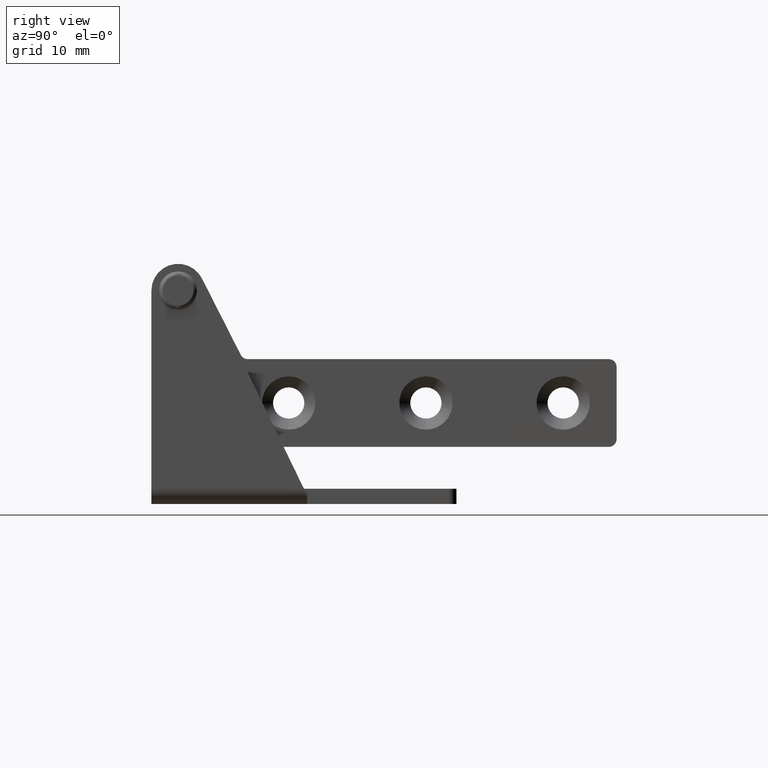
[diagram: clean part render]
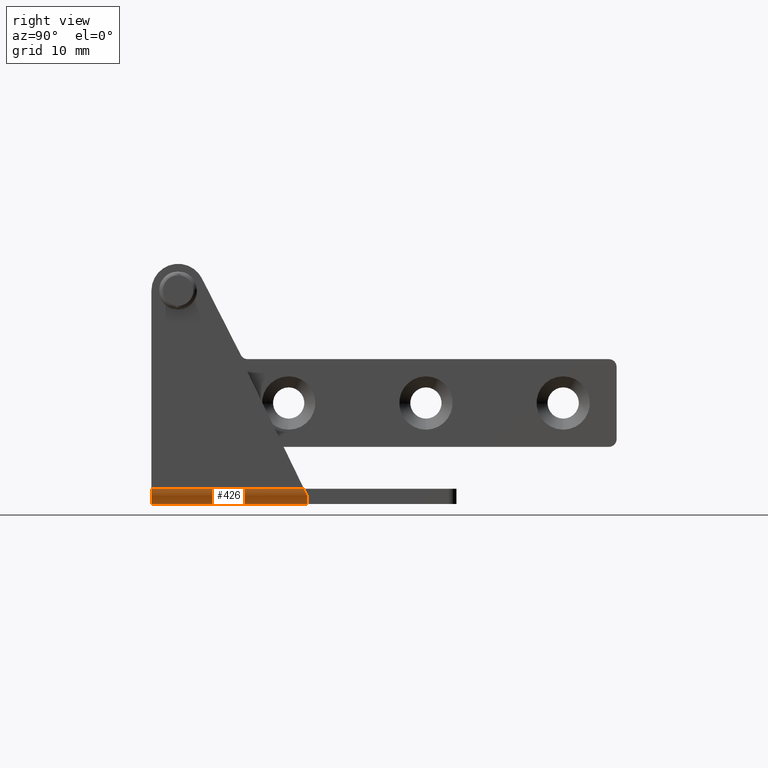
[diagram: same view with one face highlighted and labeled with its STEP entity id]
A machine part, right view. The second image highlights one B-rep face of the part: STEP entity #426.
In plain terms, the highlighted cylindrical surface (edge-blend (fillet) strip) has radius 2 mm, axis along (0, -1, 0).
Its self-contained STEP definition (entity closure, byte-faithful):
#426=ADVANCED_FACE('',(#1426),#1425,.T.);
#1425=CYLINDRICAL_SURFACE('',#2628,2.00000000000E+000);
#1426=FACE_OUTER_BOUND('',#2629,.T.);
#2625=CARTESIAN_POINT('',(2.00000000000E+000,0.00000000000E+000,-2.60000000000E+001));
#2626=DIRECTION('',(-0.00000000000E+000,1.00000000000E+000,-0.00000000000E+000));
#2627=DIRECTION('',(-0.00000000000E+000,-0.00000000000E+000,1.00000000000E+000));
#2628=AXIS2_PLACEMENT_3D('',#2625,#2626,#2627);
#2629=EDGE_LOOP('',(#3502,#3503,#3504,#3505,#3506));
#3502=ORIENTED_EDGE('',*,*,#3944,.F.);
#3503=ORIENTED_EDGE('',*,*,#3981,.T.);
#3504=ORIENTED_EDGE('',*,*,#3933,.F.);
#3505=ORIENTED_EDGE('',*,*,#3921,.T.);
#3506=ORIENTED_EDGE('',*,*,#3925,.T.);
#3921=EDGE_CURVE('',#5293,#5300,#5307,.T.);
#3925=EDGE_CURVE('',#5300,#5326,#5333,.T.);
#3933=EDGE_CURVE('',#5293,#5340,#5388,.T.);
#3944=EDGE_CURVE('',#5457,#5326,#5464,.T.);
#3981=EDGE_CURVE('',#5457,#5340,#5707,.T.);
#5293=VERTEX_POINT('',#7133);
#5300=VERTEX_POINT('',#7137);
#5307=CIRCLE('',#7144,2.00000000000E+000);
#5326=VERTEX_POINT('',#7152);
#5333=(BOUNDED_CURVE() B_SPLINE_CURVE(2,(#7156,#7157,#7158),.UNSPECIFIED.,.F.,.F.) B_SPLINE_CURVE_WITH_KNOTS((3,3),(-2.02237433212E+000,-1.57079632679E+000),.UNSPECIFIED.) CURVE() GEOMETRIC_REPRESENTATION_ITEM() RATIONAL_B_SPLINE_CURVE((1.00000000000E+000,9.74617772157E-001,1.00000000000E+000)) REPRESENTATION_ITEM('') );
#5340=VERTEX_POINT('',#7160);
#5388=LINE('',#7190,#7191);
#5457=VERTEX_POINT('',#7236);
#5464=LINE('',#7240,#7241);
#5707=CIRCLE('',#7389,2.00000000000E+000);
#7133=CARTESIAN_POINT('',(2.00000000000E+000,-2.39232967449E+001,-2.80000000000E+001));
#7137=CARTESIAN_POINT('',(2.00480792786E-001,-2.39232967449E+001,-2.68727718046E+001));
#7141=CARTESIAN_POINT('',(2.00000000000E+000,-2.39232967449E+001,-2.60000000000E+001));
#7142=DIRECTION('',(0.00000000000E+000,1.00000000000E+000,-2.40073338193E-014));
#7143=DIRECTION('',(-0.00000000000E+000,-2.40073338193E-014,-1.00000000000E+000));
#7144=AXIS2_PLACEMENT_3D('',#7141,#7142,#7143);
#7152=CARTESIAN_POINT('',(0.00000000000E+000,-2.35000000000E+001,-2.60000000000E+001));
#7156=CARTESIAN_POINT('',(2.00480792786E-001,-2.39232967449E+001,-2.68727718046E+001));
#7157=CARTESIAN_POINT('',(1.00946264265E-015,-2.37228159522E+001,-2.64594117082E+001));
#7158=CARTESIAN_POINT('',(0.00000000000E+000,-2.35000000000E+001,-2.60000000000E+001));
#7160=CARTESIAN_POINT('',(2.00000000001E+000,-3.50000000000E+000,-2.80000000000E+001));
#7190=CARTESIAN_POINT('',(2.00000000000E+000,-2.39232967449E+001,-2.80000000000E+001));
#7191=VECTOR('',#7192,2.04232967449E+001);
#7192=DIRECTION('',(0.00000000000E+000,1.00000000000E+000,0.00000000000E+000));
#7236=CARTESIAN_POINT('',(0.00000000000E+000,-3.50000000000E+000,-2.60000000000E+001));
#7240=CARTESIAN_POINT('',(0.00000000000E+000,-3.50000000000E+000,-2.60000000000E+001));
#7241=VECTOR('',#7242,2.00000000000E+001);
#7242=DIRECTION('',(0.00000000000E+000,-1.00000000000E+000,0.00000000000E+000));
#7386=CARTESIAN_POINT('',(2.00000000000E+000,-3.50000000000E+000,-2.60000000000E+001));
#7387=DIRECTION('',(0.00000000000E+000,-1.00000000000E+000,-0.00000000000E+000));
#7388=DIRECTION('',(4.77484718431E-012,0.00000000000E+000,-1.00000000000E+000));
#7389=AXIS2_PLACEMENT_3D('',#7386,#7387,#7388);